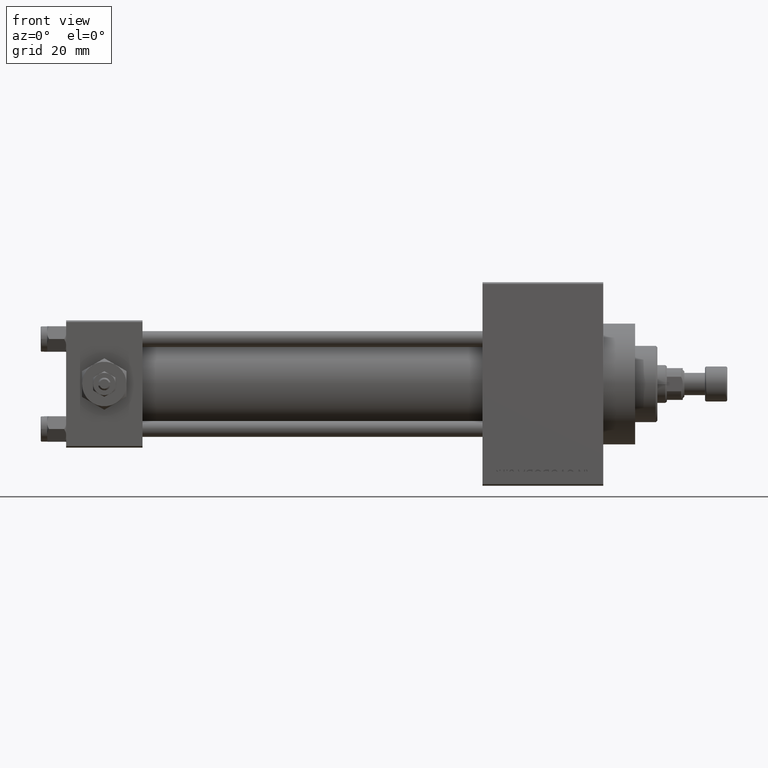
[diagram: clean part render]
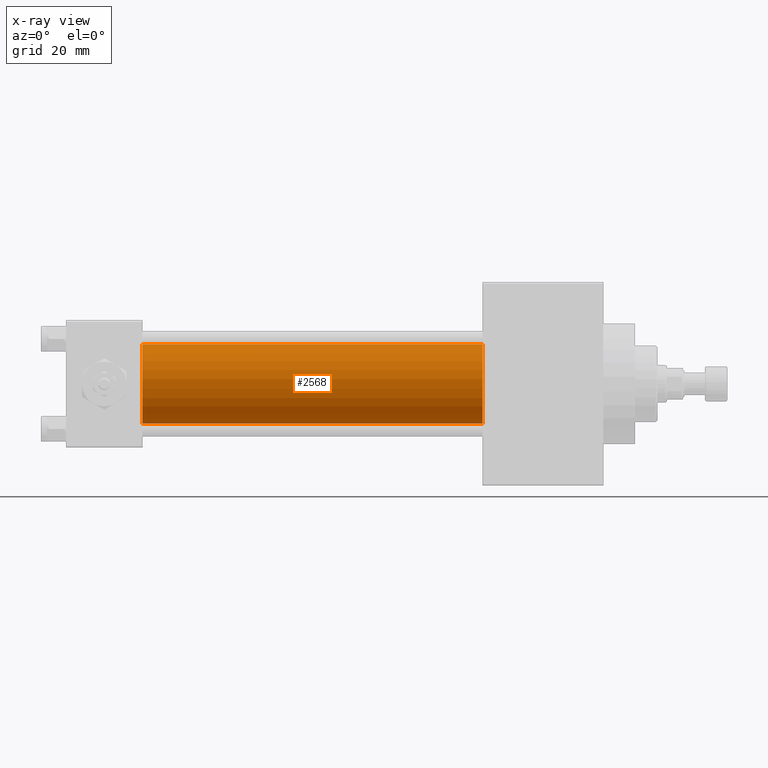
[diagram: x-ray — body ghosted, one internal face saturated and labeled with its STEP entity id]
A machine part, front view, then the same camera in x-ray: the body is ghosted and one INTERNAL B-rep face — a face not visible from any outside direction — is saturated and labeled: STEP entity #2568.
In plain terms, the highlighted cylindrical surface (partial cylindrical patch) has radius 12.5 mm, axis along (-1, -0, -0).
Its self-contained STEP definition (entity closure, byte-faithful):
#86 = VECTOR ( 'NONE', #6122, 1000.000000000000000 ) ;
#2568 = ADVANCED_FACE ( 'NONE', ( #2921 ), #22101, .F. ) ;
#2921 = FACE_OUTER_BOUND ( 'NONE', #32087, .T. ) ;
#3173 = VERTEX_POINT ( 'NONE', #31894 ) ;
#4377 = VERTEX_POINT ( 'NONE', #38575 ) ;
#5487 = EDGE_CURVE ( 'NONE', #3173, #4377, #47567, .T. ) ;
#6122 = DIRECTION ( 'NONE',  ( -1.000000000000000000, -0.000000000000000000, -0.000000000000000000 ) ) ;
#7044 = EDGE_CURVE ( 'NONE', #35877, #11961, #29287, .T. ) ;
#7321 = EDGE_CURVE ( 'NONE', #11961, #4377, #27910, .T. ) ;
#8273 = CARTESIAN_POINT ( 'NONE',  ( 131.0000000000000000, -2.602085213965210642E-15, 12.49999999999999645 ) ) ;
#10695 = ORIENTED_EDGE ( 'NONE', *, *, #12735, .T. ) ;
#11961 = VERTEX_POINT ( 'NONE', #29722 ) ;
#12735 = EDGE_CURVE ( 'NONE', #35877, #3173, #19368, .T. ) ;
#13055 = DIRECTION ( 'NONE',  ( 0.000000000000000000, 0.000000000000000000, -1.000000000000000000 ) ) ;
#18114 = CARTESIAN_POINT ( 'NONE',  ( 131.0000000000000000, -2.602085213965210642E-15, 0.000000000000000000 ) ) ;
#19368 = CIRCLE ( 'NONE', #24919, 12.49999999999999645 ) ;
#19981 = AXIS2_PLACEMENT_3D ( 'NONE', #46918, #31500, #24040 ) ;
#20699 = AXIS2_PLACEMENT_3D ( 'NONE', #18114, #33285, #48460 ) ;
#22101 = CYLINDRICAL_SURFACE ( 'NONE', #20699, 12.49999999999999645 ) ;
#23968 = DIRECTION ( 'NONE',  ( -1.000000000000000000, -0.000000000000000000, -0.000000000000000000 ) ) ;
#24040 = DIRECTION ( 'NONE',  ( 0.000000000000000000, 0.000000000000000000, -1.000000000000000000 ) ) ;
#24919 = AXIS2_PLACEMENT_3D ( 'NONE', #29230, #28258, #13055 ) ;
#25603 = VECTOR ( 'NONE', #23968, 1000.000000000000000 ) ;
#27910 = CIRCLE ( 'NONE', #19981, 12.49999999999999645 ) ;
#28258 = DIRECTION ( 'NONE',  ( 1.000000000000000000, 0.000000000000000000, 0.000000000000000000 ) ) ;
#28661 = CARTESIAN_POINT ( 'NONE',  ( 131.0000000000000000, -1.071276715031019515E-15, -12.49999999999999645 ) ) ;
#29230 = CARTESIAN_POINT ( 'NONE',  ( 131.0000000000000000, -2.602085213965210642E-15, 0.000000000000000000 ) ) ;
#29287 = LINE ( 'NONE', #48196, #86 ) ;
#29722 = CARTESIAN_POINT ( 'NONE',  ( 24.00000000000000000, -2.602085213965210642E-15, 12.49999999999999645 ) ) ;
#31500 = DIRECTION ( 'NONE',  ( 1.000000000000000000, 0.000000000000000000, 0.000000000000000000 ) ) ;
#31894 = CARTESIAN_POINT ( 'NONE',  ( 131.0000000000000000, -1.071276715031019515E-15, -12.49999999999999645 ) ) ;
#32087 = EDGE_LOOP ( 'NONE', ( #10695, #39482, #48468, #39638 ) ) ;
#33285 = DIRECTION ( 'NONE',  ( -1.000000000000000000, -0.000000000000000000, -0.000000000000000000 ) ) ;
#35877 = VERTEX_POINT ( 'NONE', #8273 ) ;
#38575 = CARTESIAN_POINT ( 'NONE',  ( 24.00000000000000000, -1.071276715031019515E-15, -12.49999999999999645 ) ) ;
#39482 = ORIENTED_EDGE ( 'NONE', *, *, #5487, .T. ) ;
#39638 = ORIENTED_EDGE ( 'NONE', *, *, #7044, .F. ) ;
#46918 = CARTESIAN_POINT ( 'NONE',  ( 24.00000000000000000, -2.602085213965210642E-15, 0.000000000000000000 ) ) ;
#47567 = LINE ( 'NONE', #28661, #25603 ) ;
#48196 = CARTESIAN_POINT ( 'NONE',  ( 131.0000000000000000, -2.602085213965210642E-15, 12.49999999999999645 ) ) ;
#48460 = DIRECTION ( 'NONE',  ( 0.000000000000000000, 0.000000000000000000, 1.000000000000000000 ) ) ;
#48468 = ORIENTED_EDGE ( 'NONE', *, *, #7321, .F. ) ;